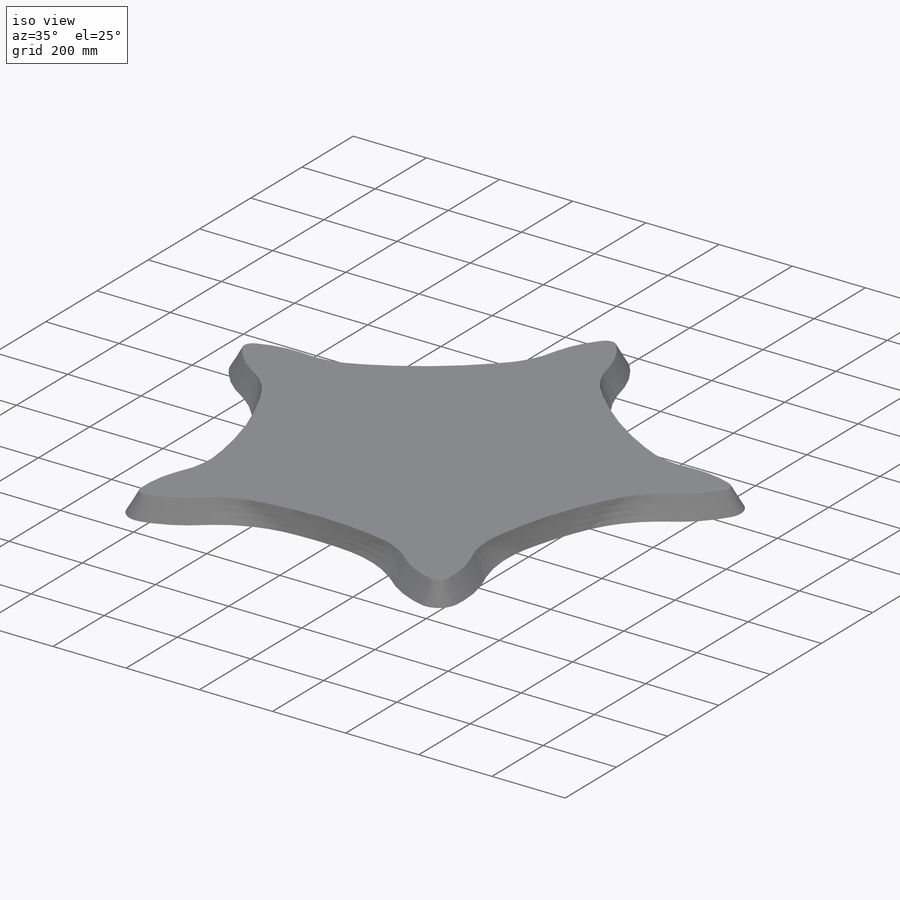
[diagram: iso view]
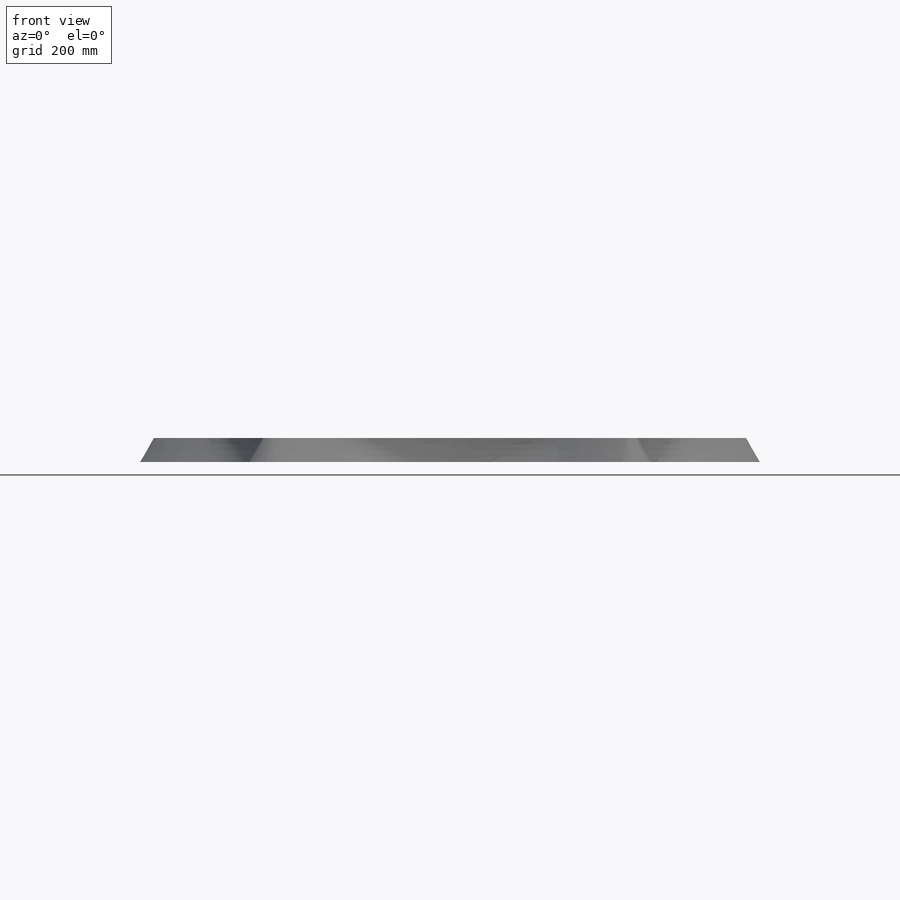
[diagram: front view]
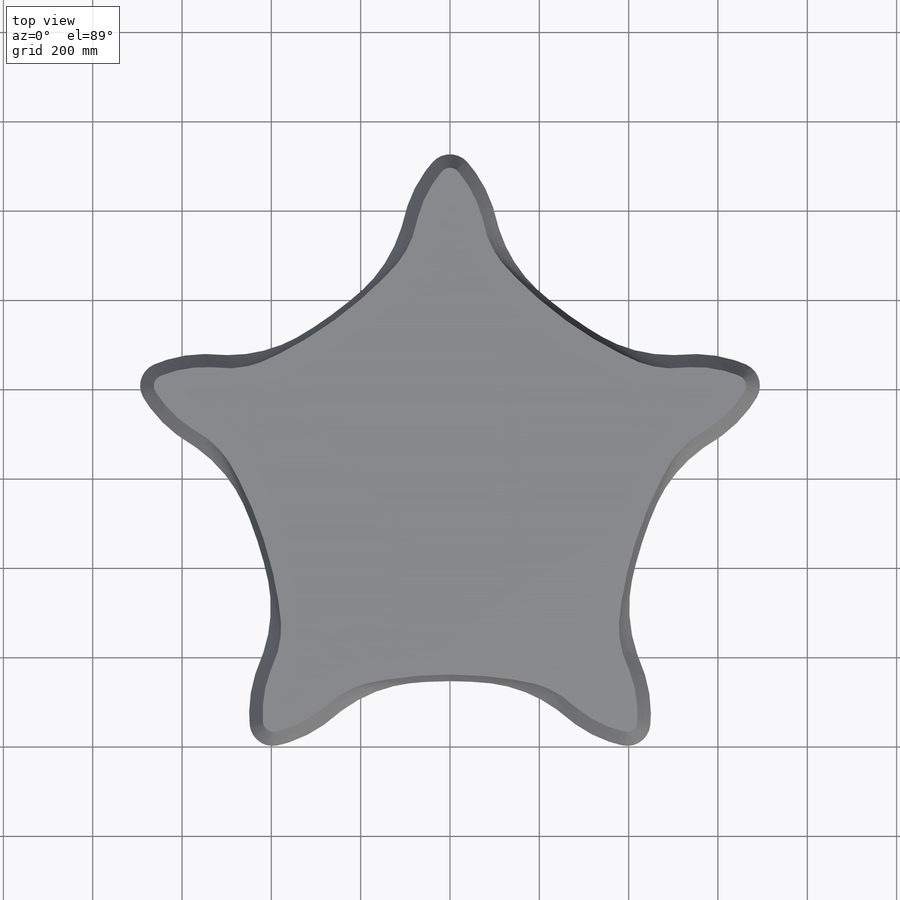
[diagram: top view]
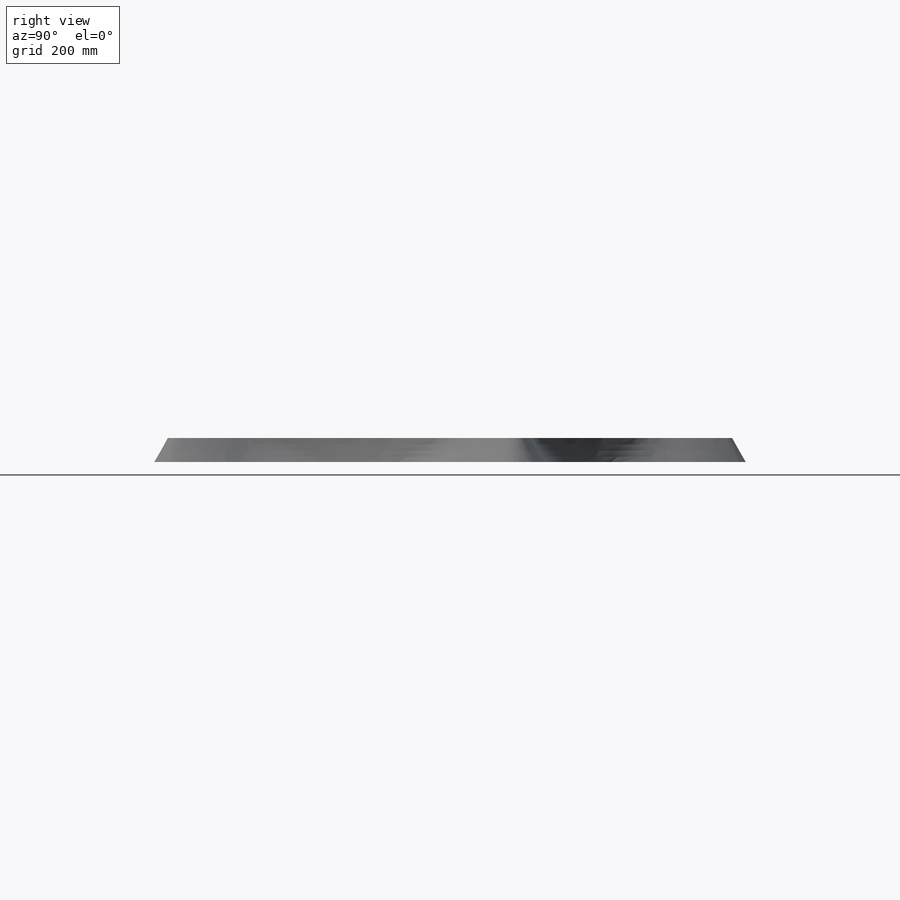
[diagram: right view]
SOLIDWORKS PART (.sldprt)
format: sldprt  version: not decoded by parser v0  size: 472,576 bytes
history: native  units: mm
features: plane x6, sketch x4, pattern_circular x2, material x1, extrude x1, fillet x1 (+13 scaffold rows collapsed)
feature tree (28):
  scaffold x13  (default folders/planes/origin — collapsed)
  material  "Material <nicht festgelegt>"
  plane  "Ebene vorne"
  plane  "Ebene oben"
  plane  "Ebene rechts"
  sketch  "Skizze1"  dims[c1.D1=1098.0mm c1.D4=900.0mm c1.D5=206.0mm c1.D6=258.0mm c1.D7=24.0mm c2.D4=180.0mm c2.D5=516.0mm c2.D6=900.0mm c2.D7=1098.0mm c3.D5=258.0mm c3.D8=24.0mm c3.D9=206.0mm c3.D2=~416.210659mm c4.D2=72.0deg c4.D3=~416.210659mm c5.D3=36.0deg c5.D7=439.0mm]
  plane  "Ebene1"  Offset=29mm
  sketch  "Skizze2"  dims[c1.D1=1098.0mm c1.D4=900.0mm c1.D5=206.0mm c1.D6=258.0mm c1.D7=24.0mm c2.D4=180.0mm c2.D5=516.0mm c2.D6=900.0mm c2.D7=1098.0mm c3.D5=258.0mm c3.D8=24.0mm c3.D9=251.0mm c4.D5=180.0mm c4.D4=180.0mm c5.D5=38.0mm c5.D8=273.5mm c5.D2=~416.210659mm c6.D2=72.0deg c6.D3=~416.210659mm c7.D3=36.0deg c7.D7=446.0mm]
  plane  "Ebene2"  Offset=25mm
  sketch  "Skizze3"  dims[c1.D1=1098.0mm c1.D4=900.0mm c1.D5=206.0mm c1.D6=258.0mm c1.D7=24.0mm c2.D4=180.0mm c2.D5=516.0mm c2.D6=900.0mm c2.D7=1098.0mm c3.D5=258.0mm c3.D8=24.0mm c3.D9=315.0mm c4.D5=180.0mm c4.D4=180.0mm c5.D5=52.0mm c5.D8=288.0mm c5.D2=~416.210659mm c6.D2=72.0deg c6.D3=~416.210659mm c7.D3=36.0deg c7.D7=453.0mm]
  pattern_circular  "Kreismuster1"  Count=5 Angle=360deg
  pattern_circular  "Oberflächenausfüllung2"  [2 undecoded]
  plane  "Ebene3"  Offset=45mm
  sketch  "Skizze4"  dims[D1=2000.0mm]
  extrude  "Aufsatz-Linear austragen1"  [1 undecoded]
  fillet  "Verrundung1"  Radius=50mm
decode coverage: 6 of 8 modeling features carry decoded parameters
note: ~ marks probable driven/reference dimensions
note: 3 parameter values undecoded
note: suppression state not decoded; provenance and decode notes live in map.json
